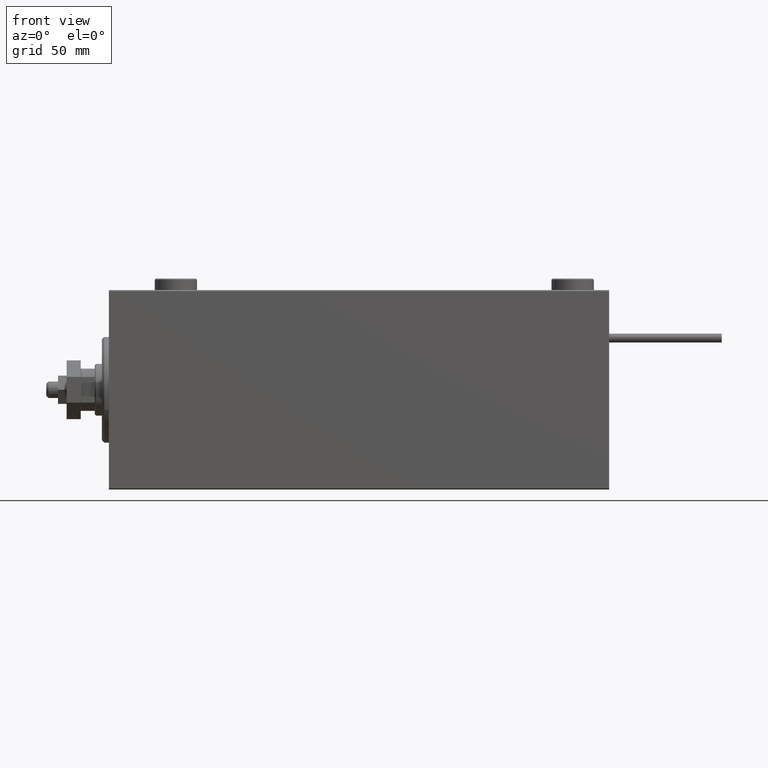
[diagram: clean part render]
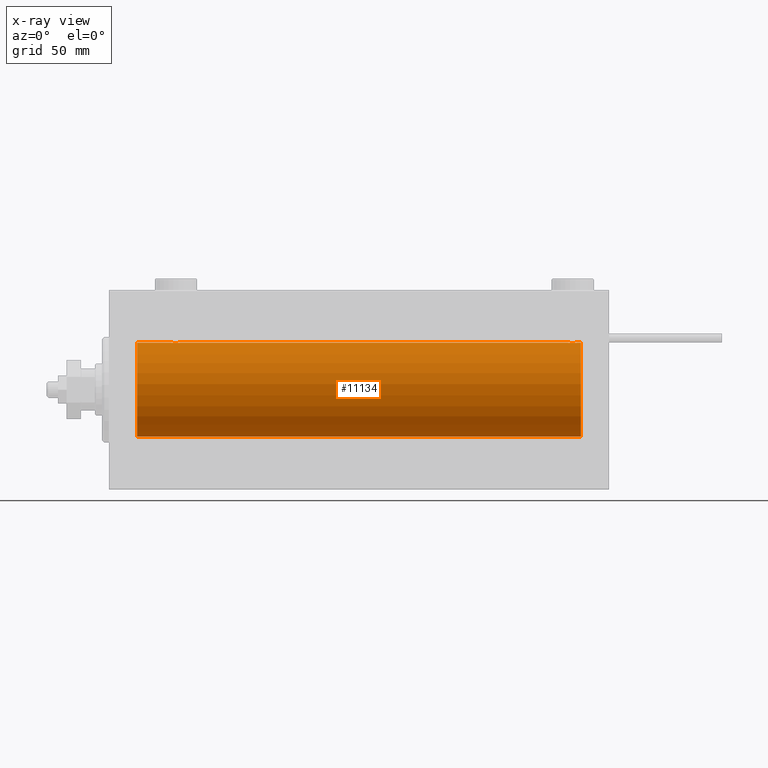
[diagram: x-ray — body ghosted, one internal face saturated and labeled with its STEP entity id]
A machine part, front view, then the same camera in x-ray: the body is ghosted and one INTERNAL B-rep face — a face not visible from any outside direction — is saturated and labeled: STEP entity #11134.
In plain terms, the highlighted cylindrical surface (partial cylindrical patch) has radius 20 mm, axis along (-1, -0, -0).
Its self-contained STEP definition (entity closure, byte-faithful):
#322 = ORIENTED_EDGE ( 'NONE', *, *, #22679, .F. ) ;
#358 = VERTEX_POINT ( 'NONE', #17657 ) ;
#665 = CARTESIAN_POINT ( 'NONE',  ( 199.0994152488403586, -1.228758402364237279, -19.96307487248085266 ) ) ;
#1036 = ORIENTED_EDGE ( 'NONE', *, *, #32726, .F. ) ;
#1154 = ORIENTED_EDGE ( 'NONE', *, *, #26841, .T. ) ;
#1252 = VECTOR ( 'NONE', #46998, 1000.000000000000000 ) ;
#1492 = CARTESIAN_POINT ( 'NONE',  ( 201.0000000000000000, 0.000000000000000000, 20.00000000000000000 ) ) ;
#1632 = CARTESIAN_POINT ( 'NONE',  ( 196.1769333108053388, -1.505486175075782196, 19.94347168299868045 ) ) ;
#1890 = CARTESIAN_POINT ( 'NONE',  ( 195.7517408653998245, -1.005710574260844758, 19.97614991974274190 ) ) ;
#2183 = DIRECTION ( 'NONE',  ( -1.000000000000000000, 0.000000000000000000, 0.000000000000000000 ) ) ;
#2659 = VERTEX_POINT ( 'NONE', #37501 ) ;
#2803 = CARTESIAN_POINT ( 'NONE',  ( 30.50000000000000000, -0.2610801504281901053, -20.00000000000000000 ) ) ;
#3346 = CARTESIAN_POINT ( 'NONE',  ( 29.14348528733042443, -1.898187925611342974, 19.90978194174746818 ) ) ;
#3375 = CARTESIAN_POINT ( 'NONE',  ( 26.50000000000000355, -1.552596590610734385E-23, 20.00000000000000000 ) ) ;
#3601 = CARTESIAN_POINT ( 'NONE',  ( 27.61170562792909777, -1.796691196322324213, 19.91919800395357498 ) ) ;
#3733 = AXIS2_PLACEMENT_3D ( 'NONE', #4260, #39170, #27710 ) ;
#3868 = CARTESIAN_POINT ( 'NONE',  ( 28.63058871710834552, -2.000100592782559250, 19.89973863218036598 ) ) ;
#4260 = CARTESIAN_POINT ( 'NONE',  ( 201.0000000000000000, 0.000000000000000000, 0.000000000000000000 ) ) ;
#4383 = CARTESIAN_POINT ( 'NONE',  ( 28.76077256031568652, -1.987205673487814739, 19.90104673894211018 ) ) ;
#4505 = B_SPLINE_CURVE_WITH_KNOTS ( 'NONE', 3,
 ( #47380, #14402, #7267, #19498, #19250, #11183, #24181, #51295, #3601, #11953, #30962, #35376, #43986, #3868, #4383, #31980, #3346, #47127, #31220, #15614, #27060, #28091, #47639, #35120, #11443, #15351 ),
 .UNSPECIFIED., .F., .F.,
 ( 4, 2, 2, 2, 2, 2, 2, 2, 2, 2, 2, 2, 4 ),
 ( 0.006256819553329818866, 0.007038738568778795009, 0.007820657584227770284, 0.008211617091952255754, 0.008602576599676739488, 0.008993536107401223223, 0.009384495615125706958, 0.009775455122850190692, 0.01016641463057467443, 0.01055737413829915816, 0.01094833364602364190, 0.01173025266147261110, 0.01251217167692157857 ),
 .UNSPECIFIED. ) ;
#4778 = LINE ( 'NONE', #17031, #28755 ) ;
#4835 = CARTESIAN_POINT ( 'NONE',  ( 199.5000000000000000, 2.449293582762473501E-15, -20.00000000000000000 ) ) ;
#5086 = CARTESIAN_POINT ( 'NONE',  ( 195.7531302369692980, -1.008108445278719900, -19.97602680192585822 ) ) ;
#5343 = CARTESIAN_POINT ( 'NONE',  ( 196.1790309315270804, -1.507328959728516438, -19.94333197382385592 ) ) ;
#5923 = LINE ( 'NONE', #1492, #27037 ) ;
#6068 = CARTESIAN_POINT ( 'NONE',  ( 195.9005847511597267, -1.228758402364247049, 19.96307487248084911 ) ) ;
#6462 = CARTESIAN_POINT ( 'NONE',  ( 29.14630673924644100, -1.897222639860597360, -19.90987429971497136 ) ) ;
#6578 = CARTESIAN_POINT ( 'NONE',  ( 198.0164853291890950, -1.936551476643003200, 19.90603968831099024 ) ) ;
#7267 = CARTESIAN_POINT ( 'NONE',  ( 26.55244937117491943, -0.5243189001515041747, 19.99457699142850231 ) ) ;
#7854 = CARTESIAN_POINT ( 'NONE',  ( 198.5006721913924252, -1.736582545981380177, 19.92459705242980661 ) ) ;
#8750 = CARTESIAN_POINT ( 'NONE',  ( 198.5030655633960350, -1.735203193119904341, -19.92471783160911158 ) ) ;
#9015 = CARTESIAN_POINT ( 'NONE',  ( 199.2482591346002039, -1.005710574260850532, -19.97614991974274190 ) ) ;
#9265 = CARTESIAN_POINT ( 'NONE',  ( 198.8230666891946328, -1.505486175075778199, -19.94347168299867690 ) ) ;
#9580 = DIRECTION ( 'NONE',  ( -1.000000000000000000, -0.000000000000000000, -0.000000000000000000 ) ) ;
#9773 = CARTESIAN_POINT ( 'NONE',  ( 201.0000000000000000, 2.449293598294706513E-15, -20.00000000000000000 ) ) ;
#9847 = CARTESIAN_POINT ( 'NONE',  ( 201.0000000000000000, 2.449293598294706513E-15, -20.00000000000000000 ) ) ;
#10504 = CARTESIAN_POINT ( 'NONE',  ( 197.2364185590859051, -1.986835489085821527, 19.90108393514801932 ) ) ;
#11134 = ADVANCED_FACE ( 'NONE', ( #28233 ), #40197, .F. ) ;
#11183 = CARTESIAN_POINT ( 'NONE',  ( 27.17693331080529973, -1.505486175075776645, 19.94347168299866979 ) ) ;
#11204 = VECTOR ( 'NONE', #33786, 1000.000000000000000 ) ;
#11420 = CARTESIAN_POINT ( 'NONE',  ( 29.01923512135277150, -1.935816449315127308, -19.90611141657401362 ) ) ;
#11443 = CARTESIAN_POINT ( 'NONE',  ( 30.50000000000000000, -0.2644051013330992461, 19.99999999999999645 ) ) ;
#11522 = CARTESIAN_POINT ( 'NONE',  ( 199.5000000000000568, -0.2644051013331001343, 20.00000000000000711 ) ) ;
#11550 = EDGE_LOOP ( 'NONE', ( #1036, #11895, #37336, #28325, #41291, #28039, #15001, #34148, #1154, #322, #43704, #38921 ) ) ;
#11666 = CARTESIAN_POINT ( 'NONE',  ( 26.90225308445270613, -1.230936344679281369, -19.96293863536309487 ) ) ;
#11895 = ORIENTED_EDGE ( 'NONE', *, *, #42482, .T. ) ;
#11953 = CARTESIAN_POINT ( 'NONE',  ( 27.85369326075355190, -1.897222639860601578, 19.90987429971495715 ) ) ;
#12209 = VERTEX_POINT ( 'NONE', #20364 ) ;
#13908 = CARTESIAN_POINT ( 'NONE',  ( 197.7607725603157007, -1.987205673487809854, 19.90104673894210308 ) ) ;
#14272 = CIRCLE ( 'NONE', #27554, 20.00000000000000000 ) ;
#14308 = CARTESIAN_POINT ( 'NONE',  ( 27.28194580527850022, -1.591668229360200026, -19.93669678979812687 ) ) ;
#14402 = CARTESIAN_POINT ( 'NONE',  ( 26.50000000000001421, -0.2610801504281932695, 20.00000000000000000 ) ) ;
#14563 = CARTESIAN_POINT ( 'NONE',  ( 29.72028945794465216, -1.589957321664210665, -19.93683391378736047 ) ) ;
#14683 = CARTESIAN_POINT ( 'NONE',  ( 196.8536932607535732, -1.897222639860597360, 19.90987429971496780 ) ) ;
#14932 = CARTESIAN_POINT ( 'NONE',  ( 198.7180541947215033, -1.591668229360202025, 19.93669678979812332 ) ) ;
#15001 = ORIENTED_EDGE ( 'NONE', *, *, #15474, .T. ) ;
#15068 = CARTESIAN_POINT ( 'NONE',  ( 30.09941524884030528, -1.228758402364235724, -19.96307487248084911 ) ) ;
#15326 = CARTESIAN_POINT ( 'NONE',  ( 29.82306668919470027, -1.505486175075773314, -19.94347168299866979 ) ) ;
#15351 = CARTESIAN_POINT ( 'NONE',  ( 30.50000000000000000, -9.453669475664189070E-16, 20.00000000000000000 ) ) ;
#15474 = EDGE_CURVE ( 'NONE', #41976, #28453, #31211, .T. ) ;
#15614 = CARTESIAN_POINT ( 'NONE',  ( 29.71805419472152110, -1.591668229360197806, 19.93669678979812687 ) ) ;
#16588 = CARTESIAN_POINT ( 'NONE',  ( 199.4475506288250699, -0.5243189001515076164, -19.99457699142850586 ) ) ;
#16843 = CARTESIAN_POINT ( 'NONE',  ( 197.2392274396843277, -1.987205673487832502, -19.90104673894210308 ) ) ;
#17031 = CARTESIAN_POINT ( 'NONE',  ( 201.0000000000000000, 2.449293598294706513E-15, -20.00000000000000000 ) ) ;
#17657 = CARTESIAN_POINT ( 'NONE',  ( 201.0000000000000000, 2.449293598294706513E-15, -20.00000000000000000 ) ) ;
#17837 = CARTESIAN_POINT ( 'NONE',  ( 201.0000000000000000, 0.000000000000000000, 0.000000000000000000 ) ) ;
#18716 = CARTESIAN_POINT ( 'NONE',  ( 28.36941128289166514, -2.000100592782555697, -19.89973863218036598 ) ) ;
#19250 = CARTESIAN_POINT ( 'NONE',  ( 26.90058475115969827, -1.228758402364238833, 19.96307487248084911 ) ) ;
#19332 = CARTESIAN_POINT ( 'NONE',  ( 199.4467948419180345, -0.5270924491156583347, 19.99450181871976184 ) ) ;
#19498 = CARTESIAN_POINT ( 'NONE',  ( 26.75174086539980678, -1.005710574260844092, 19.97614991974273835 ) ) ;
#19741 = CARTESIAN_POINT ( 'NONE',  ( 27.17903093152711591, -1.507328959728495787, -19.94333197382386302 ) ) ;
#20347 = B_SPLINE_CURVE_WITH_KNOTS ( 'NONE', 3,
 ( #4835, #48349, #16588, #9015, #665, #9265, #33202, #8750, #44431, #24890, #29307, #40762, #28543, #44692, #16843, #36864, #45200, #37118, #32180, #21236, #5343, #37372, #5086, #28803, #20986, #28287 ),
 .UNSPECIFIED., .F., .F.,
 ( 4, 2, 2, 2, 2, 2, 2, 2, 2, 2, 2, 2, 4 ),
 ( 0.006256819553329811927, 0.007038738568778726487, 0.007820657584227641915, 0.008211617091952127384, 0.008602576599676614588, 0.008993536107401101792, 0.009384495615125588996, 0.009775455122850074466, 0.01016641463057456167, 0.01055737413829904714, 0.01094833364602353434, 0.01173025266147256600, 0.01251217167692159765 ),
 .UNSPECIFIED. ) ;
#20364 = CARTESIAN_POINT ( 'NONE',  ( 195.5000000000000000, -1.553188236289650144E-23, 20.00000000000000000 ) ) ;
#20572 = VERTEX_POINT ( 'NONE', #46852 ) ;
#20676 = DIRECTION ( 'NONE',  ( -1.000000000000000000, -0.000000000000000000, -0.000000000000000000 ) ) ;
#20986 = CARTESIAN_POINT ( 'NONE',  ( 195.5000000000000284, -0.2644051013331287225, -20.00000000000000000 ) ) ;
#21236 = CARTESIAN_POINT ( 'NONE',  ( 196.2819458052784967, -1.591668229360221565, -19.93669678979811977 ) ) ;
#21724 = EDGE_CURVE ( 'NONE', #2659, #31249, #20347, .T. ) ;
#21862 = CARTESIAN_POINT ( 'NONE',  ( 12.00000000000001066, 0.000000000000000000, 0.000000000000000000 ) ) ;
#22350 = CARTESIAN_POINT ( 'NONE',  ( 28.23922743968432414, -1.987205673487811630, -19.90104673894211018 ) ) ;
#22460 = CARTESIAN_POINT ( 'NONE',  ( 198.1434852873304351, -1.898187925611338978, 19.90978194174746818 ) ) ;
#22581 = LINE ( 'NONE', #49433, #11204 ) ;
#22600 = CARTESIAN_POINT ( 'NONE',  ( 28.63365196142447644, -1.999898234284065657, -19.89975896996865856 ) ) ;
#22679 = EDGE_CURVE ( 'NONE', #12209, #20572, #30081, .T. ) ;
#22858 = CARTESIAN_POINT ( 'NONE',  ( 30.24825913460018256, -1.005710574260840096, -19.97614991974273835 ) ) ;
#23374 = CARTESIAN_POINT ( 'NONE',  ( 27.85651471266958978, -1.898187925611340976, -19.90978194174746818 ) ) ;
#23737 = AXIS2_PLACEMENT_3D ( 'NONE', #21862, #34604, #26034 ) ;
#24181 = CARTESIAN_POINT ( 'NONE',  ( 27.27971054205535495, -1.589957321664213552, 19.93683391378736047 ) ) ;
#24890 = CARTESIAN_POINT ( 'NONE',  ( 198.1463067392464552, -1.897222639860616233, -19.90987429971496070 ) ) ;
#25557 = CARTESIAN_POINT ( 'NONE',  ( 199.5000000000000000, 6.438096668033870730E-15, 20.00000000000000000 ) ) ;
#26034 = DIRECTION ( 'NONE',  ( 0.000000000000000000, 0.000000000000000000, 1.000000000000000000 ) ) ;
#26383 = CARTESIAN_POINT ( 'NONE',  ( 197.6305887171083668, -2.000100592782557474, 19.89973863218036243 ) ) ;
#26384 = EDGE_CURVE ( 'NONE', #31249, #45533, #50133, .T. ) ;
#26439 = CARTESIAN_POINT ( 'NONE',  ( 201.0000000000000000, 0.000000000000000000, 20.00000000000000000 ) ) ;
#26841 = EDGE_CURVE ( 'NONE', #36954, #20572, #4505, .T. ) ;
#27037 = VECTOR ( 'NONE', #9580, 1000.000000000000000 ) ;
#27060 = CARTESIAN_POINT ( 'NONE',  ( 29.82096906847290896, -1.507328959728495121, 19.94333197382386302 ) ) ;
#27554 = AXIS2_PLACEMENT_3D ( 'NONE', #17837, #2183, #42544 ) ;
#27710 = DIRECTION ( 'NONE',  ( 0.000000000000000000, 0.000000000000000000, 1.000000000000000000 ) ) ;
#28039 = ORIENTED_EDGE ( 'NONE', *, *, #51238, .T. ) ;
#28091 = CARTESIAN_POINT ( 'NONE',  ( 30.09774691554730808, -1.230936344679279593, 19.96293863536309487 ) ) ;
#28233 = FACE_OUTER_BOUND ( 'NONE', #11550, .T. ) ;
#28287 = CARTESIAN_POINT ( 'NONE',  ( 195.5000000000000000, -2.194759453252805910E-14, -20.00000000000000000 ) ) ;
#28325 = ORIENTED_EDGE ( 'NONE', *, *, #26384, .T. ) ;
#28453 = VERTEX_POINT ( 'NONE', #46953 ) ;
#28543 = CARTESIAN_POINT ( 'NONE',  ( 197.6336519614244764, -1.999898234284084308, -19.89975896996866211 ) ) ;
#28755 = VECTOR ( 'NONE', #20676, 1000.000000000000000 ) ;
#28803 = CARTESIAN_POINT ( 'NONE',  ( 195.5532051580820792, -0.5270924491157048530, -19.99450181871975474 ) ) ;
#29307 = CARTESIAN_POINT ( 'NONE',  ( 198.0192351213527786, -1.935816449315146626, -19.90611141657401362 ) ) ;
#29819 = DIRECTION ( 'NONE',  ( -1.000000000000000000, -0.000000000000000000, -0.000000000000000000 ) ) ;
#29941 = VECTOR ( 'NONE', #29819, 1000.000000000000000 ) ;
#30081 = LINE ( 'NONE', #40766, #42335 ) ;
#30426 = CARTESIAN_POINT ( 'NONE',  ( 29.50306556339602082, -1.735203193119896348, -19.92471783160911158 ) ) ;
#30542 = CARTESIAN_POINT ( 'NONE',  ( 196.9807648786472782, -1.935816449315135523, 19.90611141657401006 ) ) ;
#30793 = CARTESIAN_POINT ( 'NONE',  ( 199.5000000000000000, 6.438096668033870730E-15, 20.00000000000000000 ) ) ;
#30962 = CARTESIAN_POINT ( 'NONE',  ( 27.98076487864723561, -1.935816449315131749, 19.90611141657401362 ) ) ;
#31194 = CARTESIAN_POINT ( 'NONE',  ( 29.38829437207092354, -1.796691196322319994, -19.91919800395357498 ) ) ;
#31211 = CIRCLE ( 'NONE', #23737, 20.00000000000000000 ) ;
#31220 = CARTESIAN_POINT ( 'NONE',  ( 29.50067219139245367, -1.736582545981377734, 19.92459705242981371 ) ) ;
#31249 = VERTEX_POINT ( 'NONE', #35612 ) ;
#31549 = CARTESIAN_POINT ( 'NONE',  ( 199.2468697630307304, -1.008108445278674825, 19.97602680192586888 ) ) ;
#31980 = CARTESIAN_POINT ( 'NONE',  ( 29.01648532918905232, -1.936551476643010528, 19.90603968831098314 ) ) ;
#32180 = CARTESIAN_POINT ( 'NONE',  ( 196.4993278086076316, -1.736582545981399939, -19.92459705242980306 ) ) ;
#32473 = CARTESIAN_POINT ( 'NONE',  ( 26.50000000000000355, -6.257798774011376898E-15, -20.00000000000000000 ) ) ;
#32673 = B_SPLINE_CURVE_WITH_KNOTS ( 'NONE', 3,
 ( #34430, #41495, #37579, #1890, #6068, #1632, #33660, #42016, #50347, #14683, #30542, #10504, #37841, #26383, #13908, #6578, #22460, #38353, #7854, #14932, #50607, #35202, #31549, #19332, #11522, #30793 ),
 .UNSPECIFIED., .F., .F.,
 ( 4, 2, 2, 2, 2, 2, 2, 2, 2, 2, 2, 2, 4 ),
 ( 0.006256819553329832743, 0.007038738568778792407, 0.007820657584227751202, 0.008211617091952231468, 0.008602576599676711733, 0.008993536107401190263, 0.009384495615125668794, 0.009775455122850149059, 0.01016641463057462759, 0.01055737413829910612, 0.01094833364602358639, 0.01173025266147260243, 0.01251217167692161847 ),
 .UNSPECIFIED. ) ;
#32726 = EDGE_CURVE ( 'NONE', #358, #44922, #14272, .T. ) ;
#33202 = CARTESIAN_POINT ( 'NONE',  ( 198.7202894579447161, -1.589957321664215328, -19.93683391378736403 ) ) ;
#33527 = EDGE_CURVE ( 'NONE', #12209, #48256, #32673, .T. ) ;
#33660 = CARTESIAN_POINT ( 'NONE',  ( 196.2797105420553976, -1.589957321664216661, 19.93683391378736403 ) ) ;
#33786 = DIRECTION ( 'NONE',  ( -1.000000000000000000, -0.000000000000000000, -0.000000000000000000 ) ) ;
#33981 = DIRECTION ( 'NONE',  ( -1.000000000000000000, -0.000000000000000000, -0.000000000000000000 ) ) ;
#34066 = CARTESIAN_POINT ( 'NONE',  ( 27.61420923329272981, -1.797933656607920039, -19.91908554465558367 ) ) ;
#34148 = ORIENTED_EDGE ( 'NONE', *, *, #50482, .F. ) ;
#34430 = CARTESIAN_POINT ( 'NONE',  ( 195.5000000000000000, -1.553188236289650144E-23, 20.00000000000000000 ) ) ;
#34604 = DIRECTION ( 'NONE',  ( -1.000000000000000000, 0.000000000000000000, 0.000000000000000000 ) ) ;
#35120 = CARTESIAN_POINT ( 'NONE',  ( 30.44679484191798124, -0.5270924491156695479, 19.99450181871975829 ) ) ;
#35202 = CARTESIAN_POINT ( 'NONE',  ( 199.0977469155473898, -1.230936344679282257, 19.96293863536309843 ) ) ;
#35376 = CARTESIAN_POINT ( 'NONE',  ( 28.23641855908585541, -1.986835489085820194, 19.90108393514801222 ) ) ;
#35612 = CARTESIAN_POINT ( 'NONE',  ( 195.5000000000000000, -2.194759453252805910E-14, -20.00000000000000000 ) ) ;
#36864 = CARTESIAN_POINT ( 'NONE',  ( 196.9835146708109619, -1.936551476643029401, -19.90603968831098314 ) ) ;
#36954 = VERTEX_POINT ( 'NONE', #3375 ) ;
#37118 = CARTESIAN_POINT ( 'NONE',  ( 196.6142092332926836, -1.797933656607944908, -19.91908554465557302 ) ) ;
#37178 = EDGE_CURVE ( 'NONE', #45533, #46754, #47344, .T. ) ;
#37336 = ORIENTED_EDGE ( 'NONE', *, *, #21724, .T. ) ;
#37372 = CARTESIAN_POINT ( 'NONE',  ( 195.9022530844526955, -1.230936344679302907, -19.96293863536308422 ) ) ;
#37501 = CARTESIAN_POINT ( 'NONE',  ( 199.5000000000000000, 2.449293582762473501E-15, -20.00000000000000000 ) ) ;
#37579 = CARTESIAN_POINT ( 'NONE',  ( 195.5524493711749585, -0.5243189001515030645, 19.99457699142850231 ) ) ;
#37841 = CARTESIAN_POINT ( 'NONE',  ( 197.3663480385755236, -1.999898234284065657, 19.89975896996866211 ) ) ;
#38353 = CARTESIAN_POINT ( 'NONE',  ( 198.3857907667073448, -1.797933656607917152, 19.91908554465558367 ) ) ;
#38921 = ORIENTED_EDGE ( 'NONE', *, *, #40561, .F. ) ;
#39170 = DIRECTION ( 'NONE',  ( -1.000000000000000000, -0.000000000000000000, -0.000000000000000000 ) ) ;
#39769 = CARTESIAN_POINT ( 'NONE',  ( 26.50000000000000355, -6.257798774011376898E-15, -20.00000000000000000 ) ) ;
#40197 = CYLINDRICAL_SURFACE ( 'NONE', #3733, 20.00000000000000000 ) ;
#40283 = CARTESIAN_POINT ( 'NONE',  ( 26.50000000000000711, -0.2644051013331055744, -19.99999999999999645 ) ) ;
#40561 = EDGE_CURVE ( 'NONE', #44922, #48256, #22581, .T. ) ;
#40762 = CARTESIAN_POINT ( 'NONE',  ( 197.7635814409141233, -1.986835489085835738, -19.90108393514801577 ) ) ;
#40766 = CARTESIAN_POINT ( 'NONE',  ( 201.0000000000000000, 0.000000000000000000, 20.00000000000000000 ) ) ;
#41291 = ORIENTED_EDGE ( 'NONE', *, *, #37178, .T. ) ;
#41495 = CARTESIAN_POINT ( 'NONE',  ( 195.5000000000000284, -0.2610801504281917151, 20.00000000000000000 ) ) ;
#41867 = LINE ( 'NONE', #9847, #1252 ) ;
#41976 = VERTEX_POINT ( 'NONE', #44905 ) ;
#42016 = CARTESIAN_POINT ( 'NONE',  ( 196.4969344366039650, -1.735203193119901455, 19.92471783160911158 ) ) ;
#42335 = VECTOR ( 'NONE', #33981, 1000.000000000000000 ) ;
#42482 = EDGE_CURVE ( 'NONE', #358, #2659, #41867, .T. ) ;
#42544 = DIRECTION ( 'NONE',  ( 0.000000000000000000, 0.000000000000000000, 1.000000000000000000 ) ) ;
#43182 = CARTESIAN_POINT ( 'NONE',  ( 28.76358144091414815, -1.986835489085816198, -19.90108393514801222 ) ) ;
#43699 = CARTESIAN_POINT ( 'NONE',  ( 26.55320515808203297, -0.5270924491156746550, -19.99450181871975829 ) ) ;
#43704 = ORIENTED_EDGE ( 'NONE', *, *, #33527, .T. ) ;
#43986 = CARTESIAN_POINT ( 'NONE',  ( 28.36634803857551290, -1.999898234284068321, 19.89975896996865856 ) ) ;
#44431 = CARTESIAN_POINT ( 'NONE',  ( 198.3882943720709306, -1.796691196322336870, -19.91919800395357143 ) ) ;
#44692 = CARTESIAN_POINT ( 'NONE',  ( 197.3694112828916616, -2.000100592782575237, -19.89973863218036243 ) ) ;
#44905 = CARTESIAN_POINT ( 'NONE',  ( 12.00000000000001066, 2.449293598294706513E-15, -20.00000000000000000 ) ) ;
#44922 = VERTEX_POINT ( 'NONE', #26439 ) ;
#45200 = CARTESIAN_POINT ( 'NONE',  ( 196.8565147126696218, -1.898187925611367399, -19.90978194174746463 ) ) ;
#45274 = CARTESIAN_POINT ( 'NONE',  ( 30.50000000000000000, 2.449293582768389958E-15, -20.00000000000000000 ) ) ;
#45533 = VERTEX_POINT ( 'NONE', #45274 ) ;
#46322 = CARTESIAN_POINT ( 'NONE',  ( 27.98351467081095123, -1.936551476643008529, -19.90603968831098314 ) ) ;
#46754 = VERTEX_POINT ( 'NONE', #39769 ) ;
#46852 = CARTESIAN_POINT ( 'NONE',  ( 30.50000000000000000, -9.453669475664189070E-16, 20.00000000000000000 ) ) ;
#46953 = CARTESIAN_POINT ( 'NONE',  ( 12.00000000000001066, 0.000000000000000000, 20.00000000000000000 ) ) ;
#46998 = DIRECTION ( 'NONE',  ( -1.000000000000000000, -0.000000000000000000, -0.000000000000000000 ) ) ;
#47127 = CARTESIAN_POINT ( 'NONE',  ( 29.38579076670728440, -1.797933656607920261, 19.91908554465558367 ) ) ;
#47344 = B_SPLINE_CURVE_WITH_KNOTS ( 'NONE', 3,
 ( #51011, #2803, #50230, #22858, #15068, #15326, #14563, #30426, #31194, #6462, #11420, #43182, #22600, #18716, #22350, #46322, #23374, #34066, #49978, #14308, #19741, #11666, #51269, #43699, #40283, #32473 ),
 .UNSPECIFIED., .F., .F.,
 ( 4, 2, 2, 2, 2, 2, 2, 2, 2, 2, 2, 2, 4 ),
 ( 0.006256819553329837948, 0.007038738568778813223, 0.007820657584227789366, 0.008211617091952273101, 0.008602576599676756836, 0.008993536107401240570, 0.009384495615125724305, 0.009775455122850208040, 0.01016641463057469177, 0.01055737413829917551, 0.01094833364602365924, 0.01173025266147262498, 0.01251217167692159245 ),
 .UNSPECIFIED. ) ;
#47380 = CARTESIAN_POINT ( 'NONE',  ( 26.50000000000000355, -1.552596590610734385E-23, 20.00000000000000000 ) ) ;
#47639 = CARTESIAN_POINT ( 'NONE',  ( 30.24686976303072328, -1.008108445278688148, 19.97602680192586533 ) ) ;
#48256 = VERTEX_POINT ( 'NONE', #25557 ) ;
#48349 = CARTESIAN_POINT ( 'NONE',  ( 199.4999999999999716, -0.2610801504281894947, -19.99999999999999645 ) ) ;
#49433 = CARTESIAN_POINT ( 'NONE',  ( 201.0000000000000000, 0.000000000000000000, 20.00000000000000000 ) ) ;
#49978 = CARTESIAN_POINT ( 'NONE',  ( 27.49932780860757475, -1.736582545981378845, -19.92459705242981371 ) ) ;
#50133 = LINE ( 'NONE', #9773, #29941 ) ;
#50230 = CARTESIAN_POINT ( 'NONE',  ( 30.44755062882508412, -0.5243189001515006220, -19.99457699142850231 ) ) ;
#50347 = CARTESIAN_POINT ( 'NONE',  ( 196.6117056279290694, -1.796691196322318218, 19.91919800395357143 ) ) ;
#50482 = EDGE_CURVE ( 'NONE', #36954, #28453, #5923, .T. ) ;
#50607 = CARTESIAN_POINT ( 'NONE',  ( 198.8209690684728912, -1.507328959728495121, 19.94333197382385592 ) ) ;
#51011 = CARTESIAN_POINT ( 'NONE',  ( 30.50000000000000000, 2.449293582768389958E-15, -20.00000000000000000 ) ) ;
#51238 = EDGE_CURVE ( 'NONE', #46754, #41976, #4778, .T. ) ;
#51269 = CARTESIAN_POINT ( 'NONE',  ( 26.75313023696928738, -1.008108445278691478, -19.97602680192586533 ) ) ;
#51295 = CARTESIAN_POINT ( 'NONE',  ( 27.49693443660398273, -1.735203193119900344, 19.92471783160911158 ) ) ;